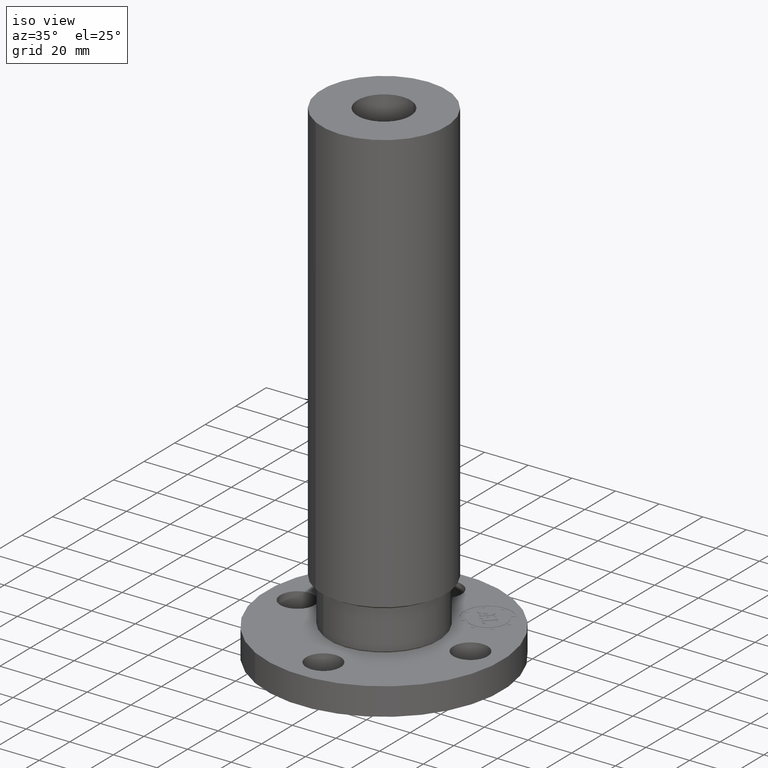
[diagram: clean part render]
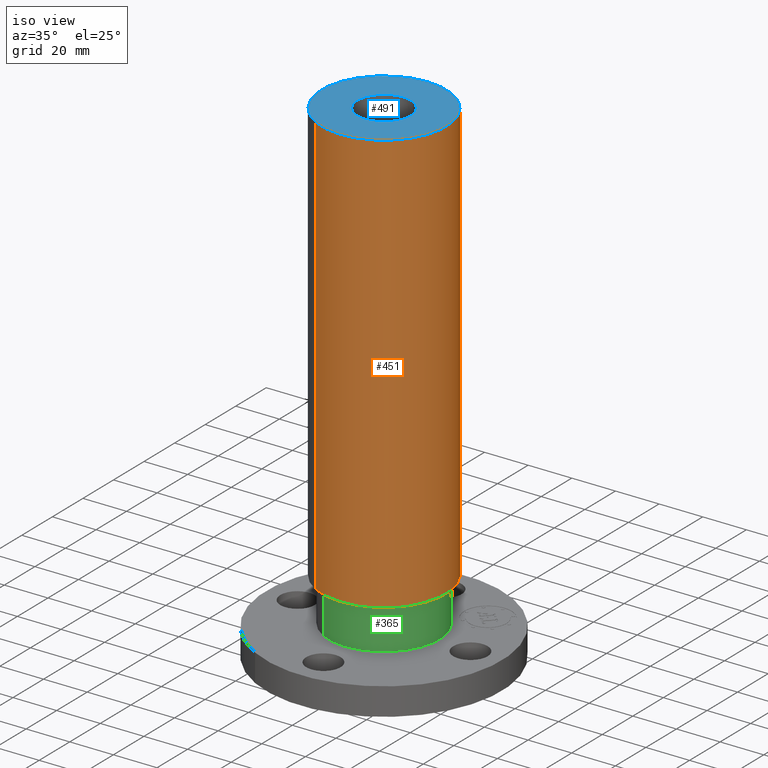
[diagram: same view with three faces highlighted in distinct colors, each labeled with its STEP entity id]
A machine part, iso view with three faces highlighted in distinct colors.
Their STEP definitions:

[orange] entity #451 — the highlighted cylindrical surface (partial cylindrical patch) has radius 28.575 mm, axis along (0, 0, -1).
#392=AXIS2_PLACEMENT_3D('Circle Axis2P3D',#390,#391,$) ;
#424=AXIS2_PLACEMENT_3D('Cylinder Axis2P3D',#421,#422,#423) ;
#435=AXIS2_PLACEMENT_3D('Circle Axis2P3D',#433,#434,$) ;
#387=CARTESIAN_POINT('Vertex',(0.539353730932,0.987280382131,1.31966878365)) ;
#390=CARTESIAN_POINT('Axis2P3D Location',(0.,0.,1.31966878365)) ;
#394=CARTESIAN_POINT('Vertex',(-0.539353730932,-0.987280382131,1.31966878365)) ;
#421=CARTESIAN_POINT('Axis2P3D Location',(0.,0.,4.43750000002)) ;
#426=CARTESIAN_POINT('Line Origine',(0.539353730932,0.987280382131,5.12858439184)) ;
#430=CARTESIAN_POINT('Vertex',(0.539353730932,0.987280382131,8.93750000004)) ;
#433=CARTESIAN_POINT('Axis2P3D Location',(0.,0.,8.93750000004)) ;
#437=CARTESIAN_POINT('Vertex',(-0.539353730932,-0.987280382131,8.93750000004)) ;
#440=CARTESIAN_POINT('Line Origine',(-0.539353730932,-0.987280382131,5.12858439184)) ;
#391=DIRECTION('Axis2P3D Direction',(-0.,0.,0.0393700787402)) ;
#422=DIRECTION('Axis2P3D Direction',(0.,0.,-0.0393700787402)) ;
#423=DIRECTION('Axis2P3D XDirection',(-0.0188750212049,-0.0345504945626,0.)) ;
#427=DIRECTION('Vector Direction',(0.,0.,-0.0393700787402)) ;
#434=DIRECTION('Axis2P3D Direction',(0.,0.,-0.0393700787402)) ;
#441=DIRECTION('Vector Direction',(0.,0.,-0.0393700787402)) ;
#428=VECTOR('Line Direction',#427,0.0393700787402) ;
#442=VECTOR('Line Direction',#441,0.0393700787402) ;
#446=ORIENTED_EDGE('',*,*,#396,.F.) ;
#447=ORIENTED_EDGE('',*,*,#432,.T.) ;
#448=ORIENTED_EDGE('',*,*,#439,.T.) ;
#449=ORIENTED_EDGE('',*,*,#444,.F.) ;
#451=ADVANCED_FACE('PartBody',(#450),#425,.T.) ;
#393=CIRCLE('generated circle',#392,1.125) ;
#436=CIRCLE('generated circle',#435,1.125) ;
#425=CYLINDRICAL_SURFACE('generated cylinder',#424,1.125) ;
#396=EDGE_CURVE('',#388,#395,#393,.F.) ;
#432=EDGE_CURVE('',#388,#431,#429,.F.) ;
#439=EDGE_CURVE('',#431,#438,#436,.T.) ;
#444=EDGE_CURVE('',#395,#438,#443,.F.) ;
#445=EDGE_LOOP('',(#446,#447,#448,#449)) ;
#450=FACE_OUTER_BOUND('',#445,.T.) ;
#429=LINE('Line',#426,#428) ;
#443=LINE('Line',#440,#442) ;
#388=VERTEX_POINT('',#387) ;
#395=VERTEX_POINT('',#394) ;
#431=VERTEX_POINT('',#430) ;
#438=VERTEX_POINT('',#437) ;

[blue] entity #491 — the highlighted planar face has unit normal (0, 0, -1).
#435=AXIS2_PLACEMENT_3D('Circle Axis2P3D',#433,#434,$) ;
#454=AXIS2_PLACEMENT_3D('Circle Axis2P3D',#452,#453,$) ;
#467=AXIS2_PLACEMENT_3D('Plane Axis2P3D',#464,#465,#466) ;
#475=AXIS2_PLACEMENT_3D('Circle Axis2P3D',#473,#474,$) ;
#484=AXIS2_PLACEMENT_3D('Circle Axis2P3D',#482,#483,$) ;
#430=CARTESIAN_POINT('Vertex',(0.539353730932,0.987280382131,8.93750000004)) ;
#433=CARTESIAN_POINT('Axis2P3D Location',(0.,0.,8.93750000004)) ;
#437=CARTESIAN_POINT('Vertex',(-0.539353730932,-0.987280382131,8.93750000004)) ;
#452=CARTESIAN_POINT('Axis2P3D Location',(0.,0.,8.93750000004)) ;
#464=CARTESIAN_POINT('Axis2P3D Location',(0.,1.125,8.93750000004)) ;
#473=CARTESIAN_POINT('Axis2P3D Location',(0.,0.,8.93750000004)) ;
#477=CARTESIAN_POINT('Vertex',(-0.230124258531,-0.421239629709,8.93750000004)) ;
#479=CARTESIAN_POINT('Vertex',(0.230124258531,0.421239629709,8.93750000004)) ;
#482=CARTESIAN_POINT('Axis2P3D Location',(0.,0.,8.93750000004)) ;
#434=DIRECTION('Axis2P3D Direction',(0.,0.,-0.0393700787402)) ;
#453=DIRECTION('Axis2P3D Direction',(0.,0.,-0.0393700787402)) ;
#465=DIRECTION('Axis2P3D Direction',(0.,0.,-0.0393700787402)) ;
#466=DIRECTION('Axis2P3D XDirection',(0.0393700787402,0.,0.)) ;
#474=DIRECTION('Axis2P3D Direction',(0.,0.,-0.0393700787402)) ;
#483=DIRECTION('Axis2P3D Direction',(0.,0.,-0.0393700787402)) ;
#470=ORIENTED_EDGE('',*,*,#439,.F.) ;
#471=ORIENTED_EDGE('',*,*,#456,.F.) ;
#488=ORIENTED_EDGE('',*,*,#481,.T.) ;
#489=ORIENTED_EDGE('',*,*,#486,.T.) ;
#490=FACE_BOUND('',#487,.T.) ;
#491=ADVANCED_FACE('PartBody',(#472,#490),#468,.F.) ;
#436=CIRCLE('generated circle',#435,1.125) ;
#455=CIRCLE('generated circle',#454,1.125) ;
#476=CIRCLE('generated circle',#475,0.480000000002) ;
#485=CIRCLE('generated circle',#484,0.480000000002) ;
#439=EDGE_CURVE('',#431,#438,#436,.T.) ;
#456=EDGE_CURVE('',#438,#431,#455,.T.) ;
#481=EDGE_CURVE('',#478,#480,#476,.T.) ;
#486=EDGE_CURVE('',#480,#478,#485,.T.) ;
#469=EDGE_LOOP('',(#470,#471)) ;
#487=EDGE_LOOP('',(#488,#489)) ;
#472=FACE_OUTER_BOUND('',#469,.T.) ;
#468=PLANE('',#467) ;
#431=VERTEX_POINT('',#430) ;
#438=VERTEX_POINT('',#437) ;
#478=VERTEX_POINT('',#477) ;
#480=VERTEX_POINT('',#479) ;

[green] entity #365 — the highlighted cylindrical surface (partial cylindrical patch) has radius 25.4 mm, axis along (0, 0, -1).
#306=AXIS2_PLACEMENT_3D('Circle Axis2P3D',#304,#305,$) ;
#338=AXIS2_PLACEMENT_3D('Cylinder Axis2P3D',#335,#336,#337) ;
#349=AXIS2_PLACEMENT_3D('Circle Axis2P3D',#347,#348,$) ;
#301=CARTESIAN_POINT('Vertex',(0.479425538606,0.877582561894,0.538480762116)) ;
#304=CARTESIAN_POINT('Axis2P3D Location',(0.,0.,0.538480762116)) ;
#308=CARTESIAN_POINT('Vertex',(-0.479425538606,-0.877582561894,0.538480762116)) ;
#335=CARTESIAN_POINT('Axis2P3D Location',(0.,0.,4.43750000002)) ;
#340=CARTESIAN_POINT('Line Origine',(0.479425538606,0.877582561894,-0.0312500000001)) ;
#344=CARTESIAN_POINT('Vertex',(0.479425538606,0.877582561894,1.2475)) ;
#347=CARTESIAN_POINT('Axis2P3D Location',(0.,0.,1.2475)) ;
#351=CARTESIAN_POINT('Vertex',(-0.479425538606,-0.877582561894,1.2475)) ;
#354=CARTESIAN_POINT('Line Origine',(-0.479425538606,-0.877582561894,-0.0312500000001)) ;
#305=DIRECTION('Axis2P3D Direction',(-0.,0.,0.0393700787402)) ;
#336=DIRECTION('Axis2P3D Direction',(0.,0.,-0.0393700787402)) ;
#337=DIRECTION('Axis2P3D XDirection',(0.0188750212049,0.0345504945626,0.)) ;
#341=DIRECTION('Vector Direction',(0.,0.,-0.0393700787402)) ;
#348=DIRECTION('Axis2P3D Direction',(0.,0.,-0.0393700787402)) ;
#355=DIRECTION('Vector Direction',(0.,0.,-0.0393700787402)) ;
#342=VECTOR('Line Direction',#341,0.0393700787402) ;
#356=VECTOR('Line Direction',#355,0.0393700787402) ;
#360=ORIENTED_EDGE('',*,*,#310,.F.) ;
#361=ORIENTED_EDGE('',*,*,#346,.T.) ;
#362=ORIENTED_EDGE('',*,*,#353,.T.) ;
#363=ORIENTED_EDGE('',*,*,#358,.F.) ;
#365=ADVANCED_FACE('PartBody',(#364),#339,.T.) ;
#307=CIRCLE('generated circle',#306,1.) ;
#350=CIRCLE('generated circle',#349,1.) ;
#339=CYLINDRICAL_SURFACE('generated cylinder',#338,1.) ;
#310=EDGE_CURVE('',#302,#309,#307,.F.) ;
#346=EDGE_CURVE('',#302,#345,#343,.F.) ;
#353=EDGE_CURVE('',#345,#352,#350,.T.) ;
#358=EDGE_CURVE('',#309,#352,#357,.F.) ;
#359=EDGE_LOOP('',(#360,#361,#362,#363)) ;
#364=FACE_OUTER_BOUND('',#359,.T.) ;
#343=LINE('Line',#340,#342) ;
#357=LINE('Line',#354,#356) ;
#302=VERTEX_POINT('',#301) ;
#309=VERTEX_POINT('',#308) ;
#345=VERTEX_POINT('',#344) ;
#352=VERTEX_POINT('',#351) ;